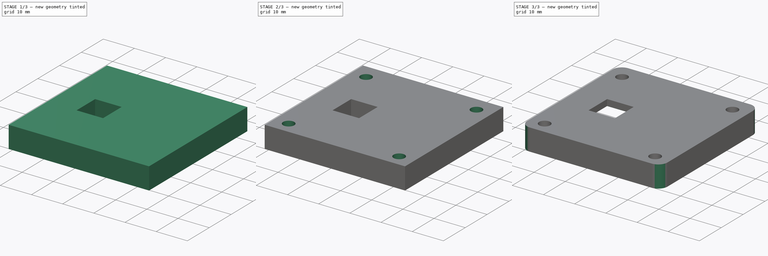
[diagram: build sequence overview — one tinted view per stage of 3, left to right]
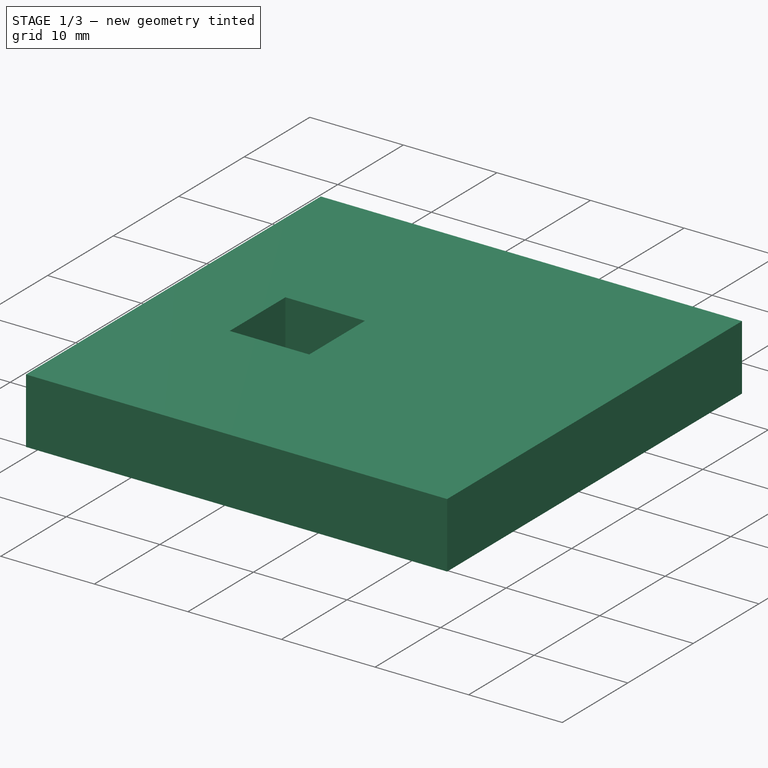
[diagram: stage 1 of 3 — iso view after this stage's code; geometry added in this stage tinted green]
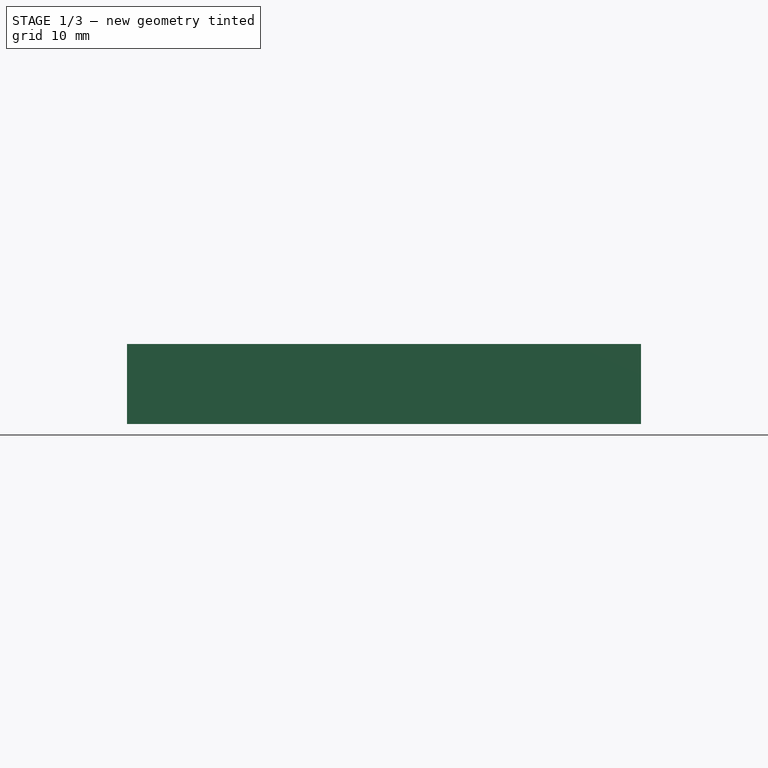
[diagram: stage 1 of 3 — front view after this stage's code; geometry added in this stage tinted green]
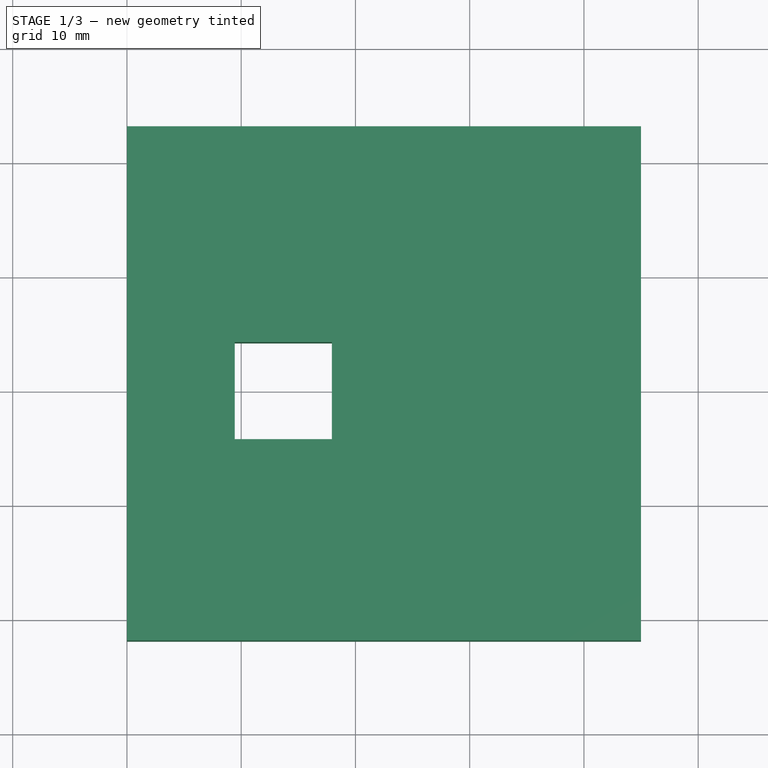
[diagram: stage 1 of 3 — top view after this stage's code; geometry added in this stage tinted green]
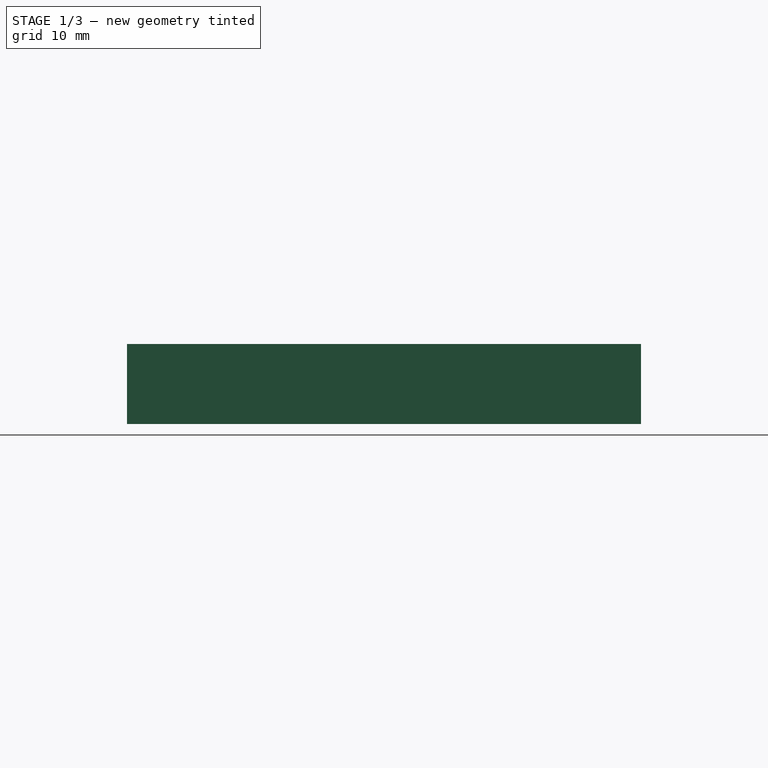
[diagram: stage 1 of 3 — right view after this stage's code; geometry added in this stage tinted green]
FCSTD DOCUMENT  (FreeCAD 0.18R16131 (Git))
Label: test
License: All rights reserved
LicenseURL: http://en.wikipedia.org/wiki/All_rights_reserved
objects: Sketcher::SketchObject×4, PartDesign::Pocket×3, PartDesign::Hole×2, PartDesign::Pad×1, PartDesign::Fillet×1, PartDesign::Body×1
note: 18 computed .brp shape members not serialized (recipe doc carries the construction recipe); baked Part::Feature solids carry a one-line shape summary decoded from their .brp

FEATURE [Sketcher::SketchObject] Sketch
  MapMode = 5
  Placement = pos=(0,0,0) rot=(0.57735,0.57735,0.57735;2.0944rad)
  Support = -> [YZ_Plane]
  sketch-geometry (4):
    g0: LineSegment StartX=-21.8621 StartY=7 StartZ=0 EndX=23.1379 EndY=7 EndZ=0
    g1: LineSegment StartX=23.1379 StartY=7 StartZ=0 EndX=23.1379 EndY=0 EndZ=0
    g2: LineSegment StartX=23.1379 StartY=0 StartZ=0 EndX=-21.8621 EndY=0 EndZ=0
    g3: LineSegment StartX=-21.8621 StartY=0 StartZ=0 EndX=-21.8621 EndY=7 EndZ=0
  constraints (11):
    c: Coincident(g0,g1)
    c: Coincident(g1,g2)
    c: Coincident(g2,g3)
    c: Coincident(g3,g0)
    c: Horizontal(g0)
    c: Horizontal(g2)
    c: Vertical(g1)
    c: Vertical(g3)
    c: PointOnObject(g1,g-1)
    c: DistanceX(g0,g0) = 45
    c: DistanceY(g3,g3) = 7
FEATURE [PartDesign::Pad] Pad
  Length = 45
  Length2 = 100
  Placement = pos=(0,0,0) rot=(0.57735,0.57735,0.57735;2.0944rad)
  Profile = -> Sketch
  Type = 0
FEATURE [Sketcher::SketchObject] Sketch002  label="Perçages"
  MapMode = 5
  Support = -> [XY_Plane]
  sketch-geometry (9):
    g0: Circle CenterX=40.1637 CenterY=17.7474 CenterZ=0 NormalX=0 NormalY=0 NormalZ=1 AngleXU=0 Radius=1.8
    g1: Circle CenterX=4.76374 CenterY=17.7474 CenterZ=0 NormalX=0 NormalY=0 NormalZ=1 AngleXU=0 Radius=1.8
    g2: Circle CenterX=4.73438 CenterY=-17.6287 CenterZ=0 NormalX=0 NormalY=0 NormalZ=1 AngleXU=0 Radius=1.8
    g3: Circle CenterX=40.1637 CenterY=-17.6526 CenterZ=0 NormalX=0 NormalY=0 NormalZ=1 AngleXU=0 Radius=1.8
    g4: LineSegment [constr] StartX=0 StartY=17.7474 StartZ=0 EndX=4.8 EndY=17.7474 EndZ=0
    g5: LineSegment [constr] StartX=4.76374 StartY=17.7474 StartZ=0 EndX=40.1637 EndY=17.7474 EndZ=0
    g6: LineSegment [constr] StartX=40.1637 StartY=17.7474 StartZ=0 EndX=40.1637 EndY=-17.6526 EndZ=0
    g7: LineSegment [constr] StartX=40.1789 StartY=-17.6448 StartZ=0 EndX=4.77894 EndY=-17.6448 EndZ=0
    g8: LineSegment [constr] StartX=0 StartY=0 StartZ=0 EndX=0 EndY=17.7 EndZ=0
  constraints (21):
    c: Radius(g0) = 1.8
    c: Equal(g0,g1)
    c: Equal(g0,g2)
    c: Equal(g0,g3)
    c: PointOnObject(g4,g-2)
    c: Horizontal(g4)
    c: Coincident(g5,g1)
    c: Coincident(g5,g0)
    c: Horizontal(g5)
    c: DistanceX(g5,g5) = 35.4
    c: Coincident(g6,g0)
    c: Coincident(g6,g3)
    c: Vertical(g6)
    c: Horizontal(g7)
    c: DistanceX(g4,g4) = 4.8
    c: Coincident(g8,g-1)
    c: Vertical(g8)
    c: DistanceY(g8,g8) = 17.7
    c: Equal(g6,g5)
    c: Equal(g6,g7)
    c: PointOnObject(g4,g5)
FEATURE [Sketcher::SketchObject] Sketch003  label="objectif"
  MapMode = 5
  Support = -> [XY_Plane]
  sketch-geometry (5):
    g0: LineSegment StartX=9.43613 StartY=4.25 StartZ=0 EndX=17.9361 EndY=4.25 EndZ=0
    g1: LineSegment StartX=17.9361 StartY=4.25 StartZ=0 EndX=17.9361 EndY=-4.25 EndZ=0
    g2: LineSegment StartX=17.9361 StartY=-4.25 StartZ=0 EndX=9.43613 EndY=-4.25 EndZ=0
    g3: LineSegment StartX=9.43613 StartY=-4.25 StartZ=0 EndX=9.43613 EndY=4.25 EndZ=0
    g4: LineSegment [constr] StartX=15.2885 StartY=0 StartZ=0 EndX=15.2885 EndY=4.25 EndZ=0
  constraints (14):
    c: Coincident(g0,g1)
    c: Coincident(g1,g2)
    c: Coincident(g2,g3)
    c: Coincident(g3,g0)
    c: Horizontal(g0)
    c: Horizontal(g2)
    c: Vertical(g1)
    c: Vertical(g3)
    c: DistanceX(g0,g0) = 8.5
    c: DistanceY(g1,g1) = 8.5
    c: PointOnObject(g4,g-1)
    c: PointOnObject(g4,g0)
    c: Vertical(g4)
    c: DistanceY(g4,g4) = 4.25
FEATURE [PartDesign::Pocket] Pocket002
  BaseFeature = -> Pad
  Length = 5
  Length2 = 100
  Placement = pos=(0,0,0) rot=(0.57735,0.57735,0.57735;2.0944rad)
  Profile = -> Sketch003
  Reversed = true
  Type = 1
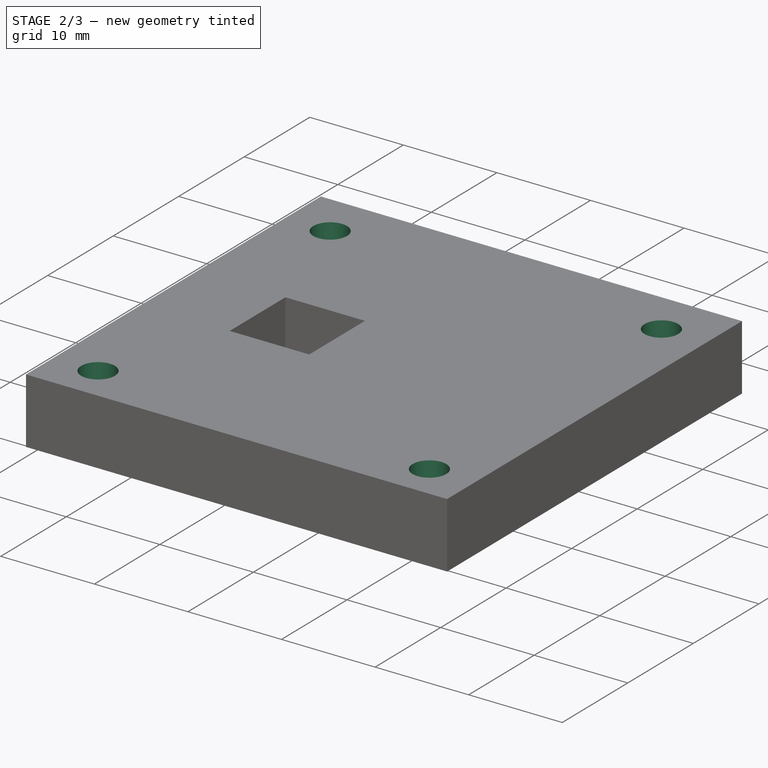
[diagram: stage 2 of 3 — iso view after this stage's code; geometry added in this stage tinted green]
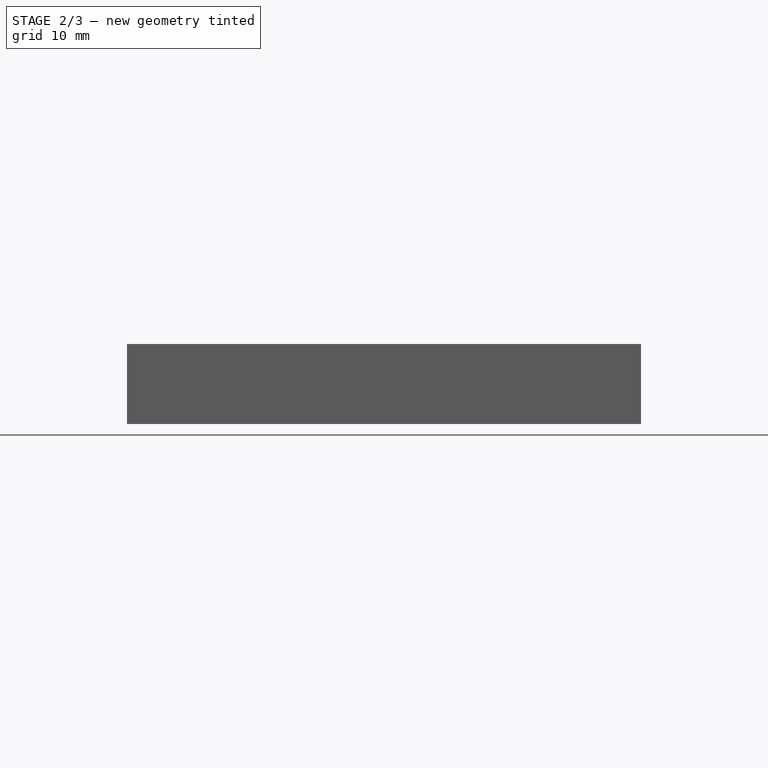
[diagram: stage 2 of 3 — front view after this stage's code; geometry added in this stage tinted green]
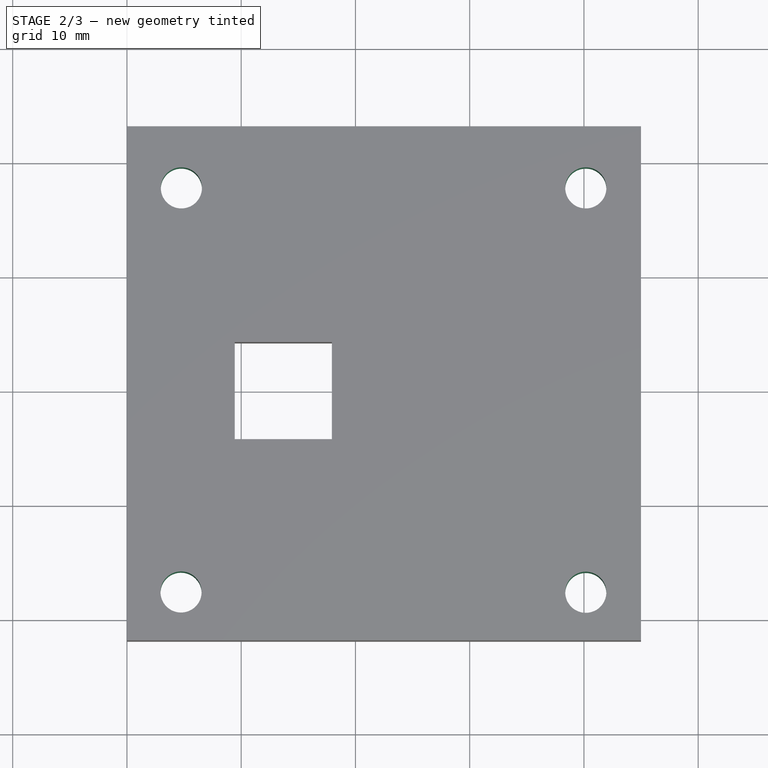
[diagram: stage 2 of 3 — top view after this stage's code; geometry added in this stage tinted green]
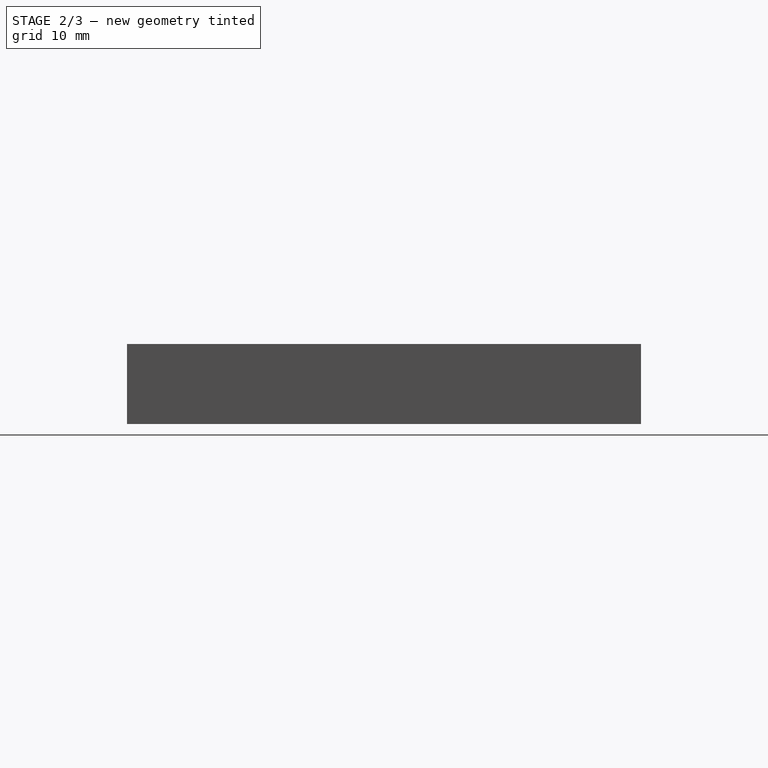
[diagram: stage 2 of 3 — right view after this stage's code; geometry added in this stage tinted green]
FEATURE [PartDesign::Hole] Hole
  BaseFeature = -> Pocket002
  Depth = 25
  DepthType = 1
  Diameter = 3.6
  DrillPoint = 1
  DrillPointAngle = 118
  HoleCutCountersinkAngle = 90
  HoleCutDepth = 0
  HoleCutDiameter = 0
  HoleCutType = 0
  ModelActualThread = false
  Placement = pos=(0,0,0) rot=(0.57735,0.57735,0.57735;2.0944rad)
  Profile = -> Sketch002
  Tapered = false
  TaperedAngle = 90
  ThreadAngle = 0
  ThreadClass = 0
  ThreadCutOffInner = 0
  ThreadCutOffOuter = 0
  ThreadDirection = 0
  ThreadFit = 0
  ThreadPitch = 0
  ThreadSize = 0
  ThreadType = 0
  Threaded = false
FEATURE [PartDesign::Hole] Hole001
  BaseFeature = -> Hole
  Depth = 25
  DepthType = 1
  Diameter = 3.6
  DrillPoint = 1
  DrillPointAngle = 118
  HoleCutCountersinkAngle = 90
  HoleCutDepth = 0
  HoleCutDiameter = 0
  HoleCutType = 0
  ModelActualThread = false
  Placement = pos=(0,0,0) rot=(0.57735,0.57735,0.57735;2.0944rad)
  Profile = -> Hole [Face10]
  Tapered = false
  TaperedAngle = 90
  ThreadAngle = 0
  ThreadClass = 0
  ThreadCutOffInner = 0
  ThreadCutOffOuter = 0
  ThreadDirection = 0
  ThreadFit = 0
  ThreadPitch = 0
  ThreadSize = 0
  ThreadType = 0
  Threaded = false
FEATURE [Sketcher::SketchObject] Sketch004  label="carte"
  MapMode = 5
  Support = -> [XY_Plane]
  sketch-geometry (5):
    g0: LineSegment StartX=1.88215 StartY=13 StartZ=0 EndX=38.8821 EndY=13 EndZ=0
    g1: LineSegment StartX=38.8821 StartY=13 StartZ=0 EndX=38.8821 EndY=-13 EndZ=0
    g2: LineSegment StartX=38.8821 StartY=-13 StartZ=0 EndX=1.88215 EndY=-13 EndZ=0
    g3: LineSegment StartX=1.88215 StartY=-13 StartZ=0 EndX=1.88215 EndY=13 EndZ=0
    g4: LineSegment [constr] StartX=15.5003 StartY=0 StartZ=0 EndX=15.5003 EndY=13 EndZ=0
  constraints (14):
    c: Coincident(g0,g1)
    c: Coincident(g1,g2)
    c: Coincident(g2,g3)
    c: Coincident(g3,g0)
    c: Horizontal(g0)
    c: Horizontal(g2)
    c: Vertical(g1)
    c: Vertical(g3)
    c: DistanceX(g0,g0) = 37
    c: DistanceY(g1,g1) = 26
    c: PointOnObject(g4,g0)
    c: Vertical(g4)
    c: DistanceY(g4,g4) = 13
    c: PointOnObject(g4,g-1)
FEATURE [PartDesign::Pocket] Pocket
  BaseFeature = -> Hole001
  Length = 5
  Length2 = 100
  Placement = pos=(0,0,0) rot=(0.57735,0.57735,0.57735;2.0944rad)
  Profile = -> Sketch004
  Type = 0
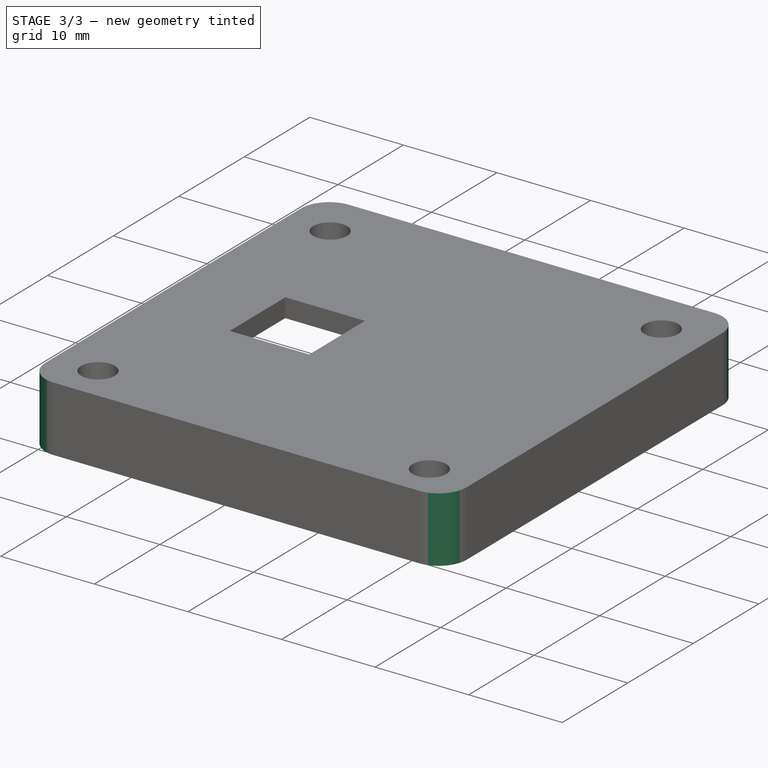
[diagram: stage 3 of 3 — iso view after this stage's code; geometry added in this stage tinted green]
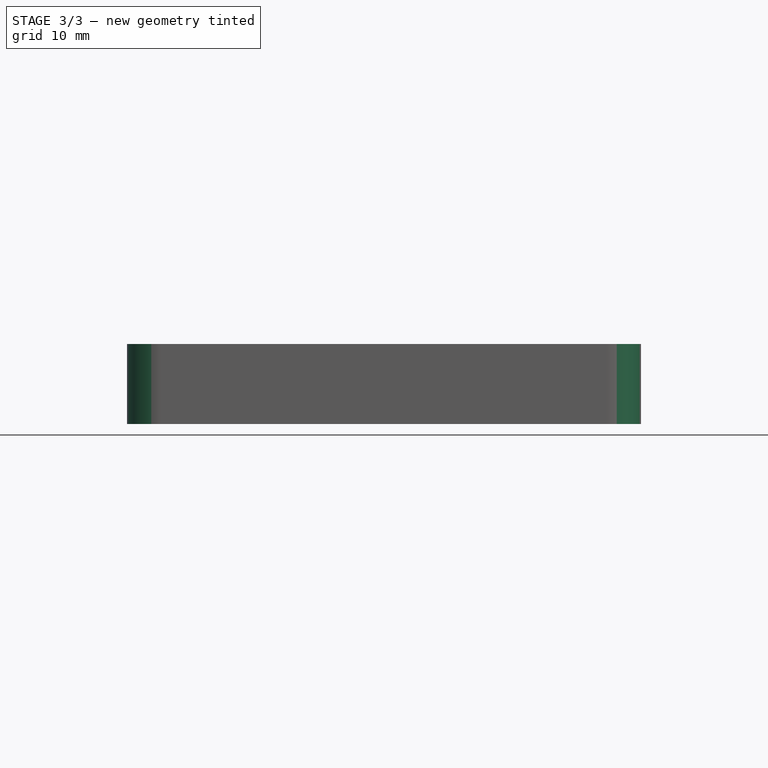
[diagram: stage 3 of 3 — front view after this stage's code; geometry added in this stage tinted green]
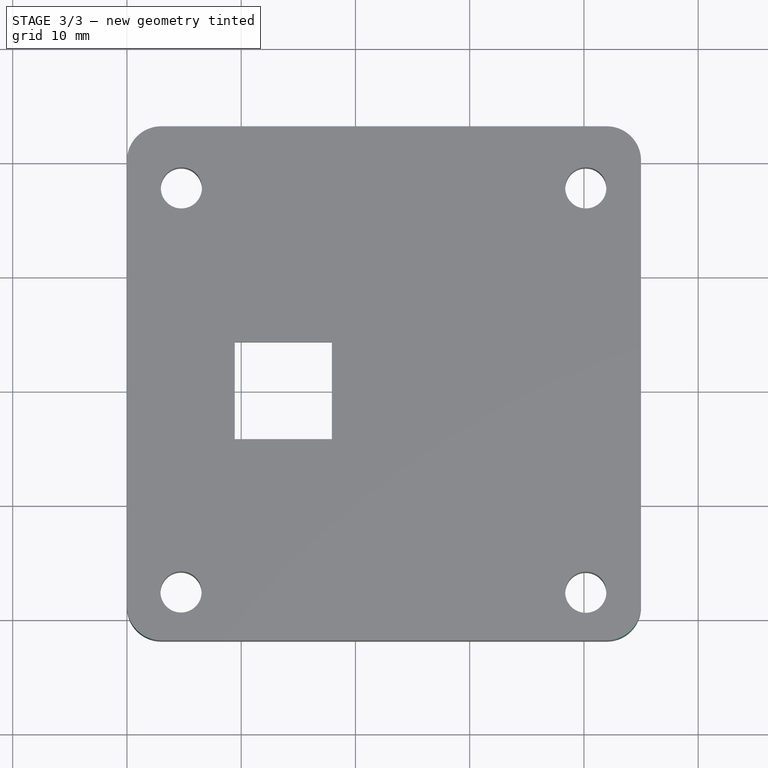
[diagram: stage 3 of 3 — top view after this stage's code; geometry added in this stage tinted green]
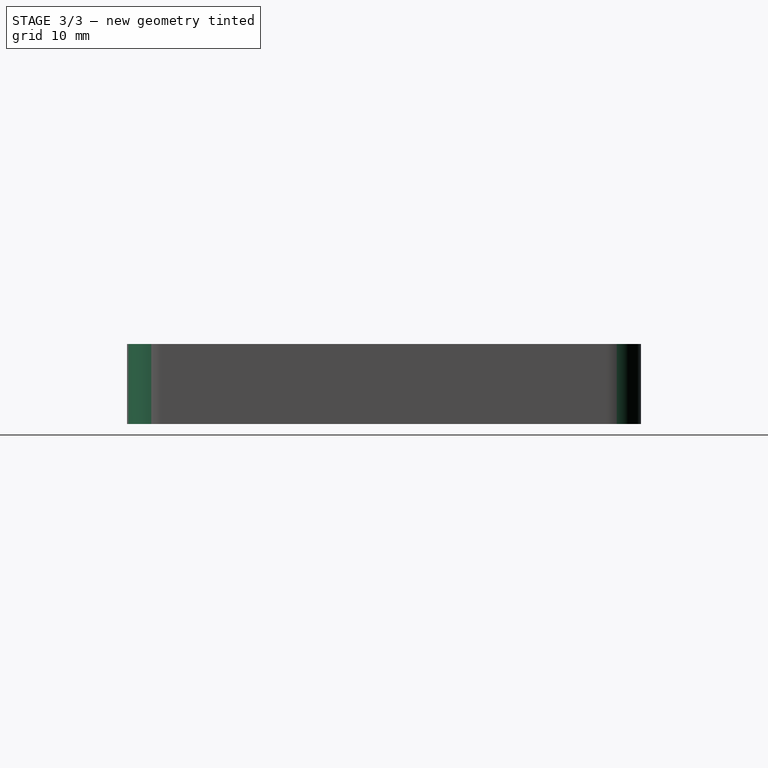
[diagram: stage 3 of 3 — right view after this stage's code; geometry added in this stage tinted green]
FEATURE [PartDesign::Pocket] Pocket003
  BaseFeature = -> Pocket
  Length = 5
  Length2 = 100
  Placement = pos=(0,0,0) rot=(0.57735,0.57735,0.57735;2.0944rad)
  Profile = -> Pocket [Face15]
  Type = 0
FEATURE [PartDesign::Fillet] Fillet
  Base = -> Pocket003 [Edge15,Edge14,Edge18,Edge16]
  BaseFeature = -> Pocket003
  Placement = pos=(0,0,0) rot=(0.57735,0.57735,0.57735;2.0944rad)
  Radius = 3
FEATURE [PartDesign::Body] Body
  Group = -> [Sketch,Pad,Sketch002,Sketch003,Pocket002,Hole,Hole001,Sketch004,Pocket,Pocket003,Fillet]
  Origin = -> Origin
  Tip = -> Fillet
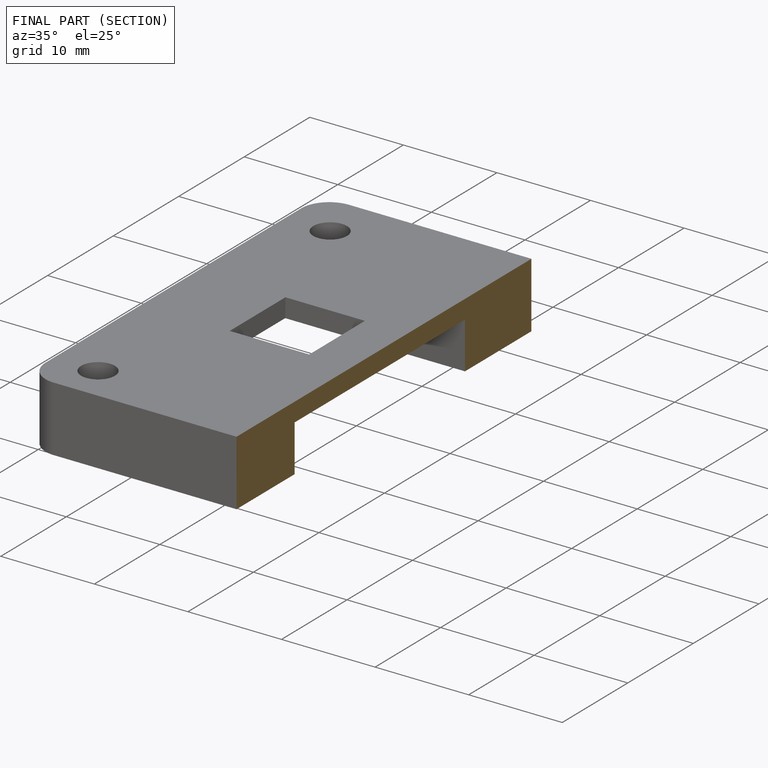
[diagram: finished part — half-section view (interior)]
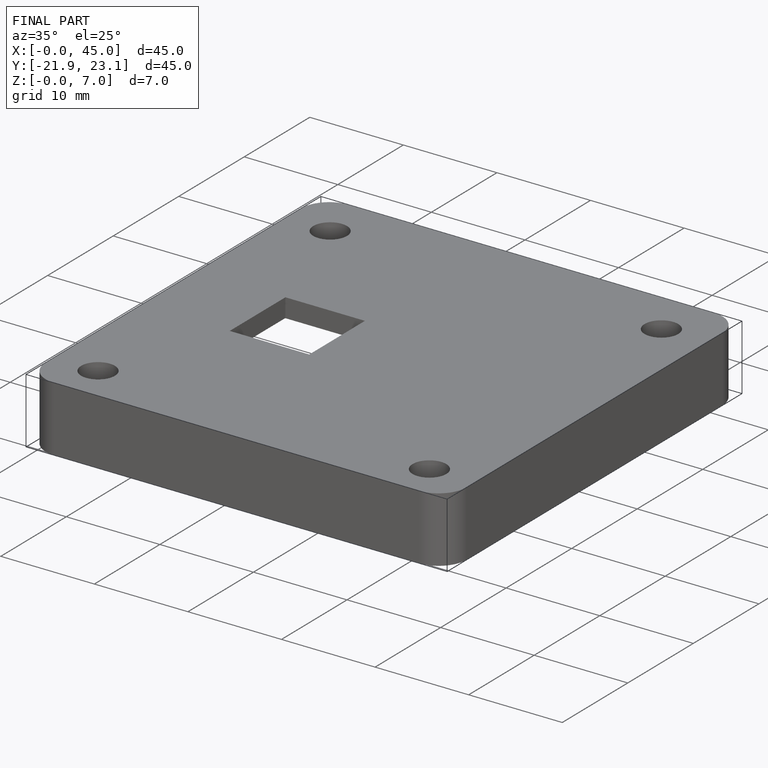
[diagram: finished part — iso view with bounding-box wireframe]
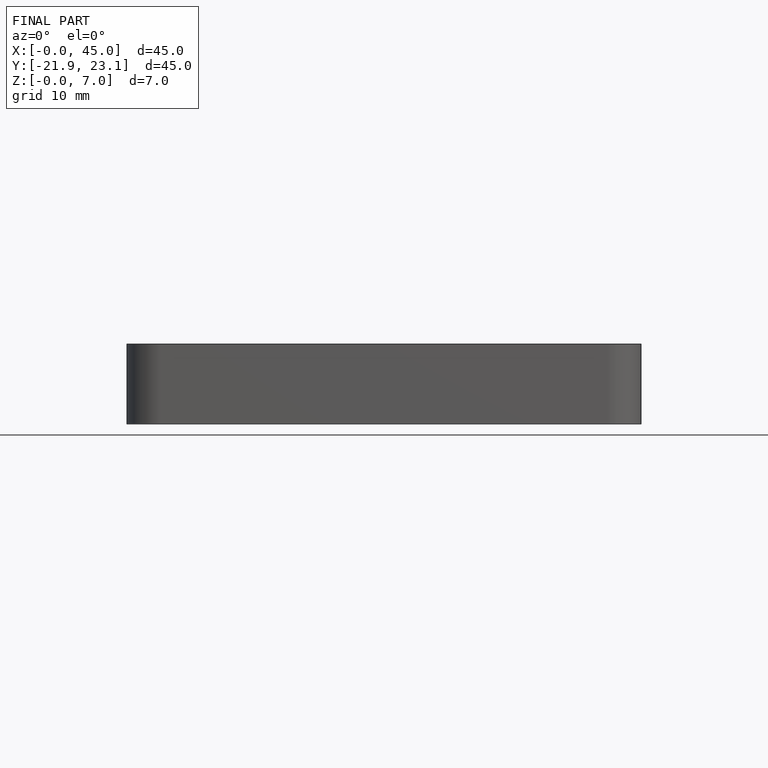
[diagram: finished part — front view with bounding-box wireframe]
